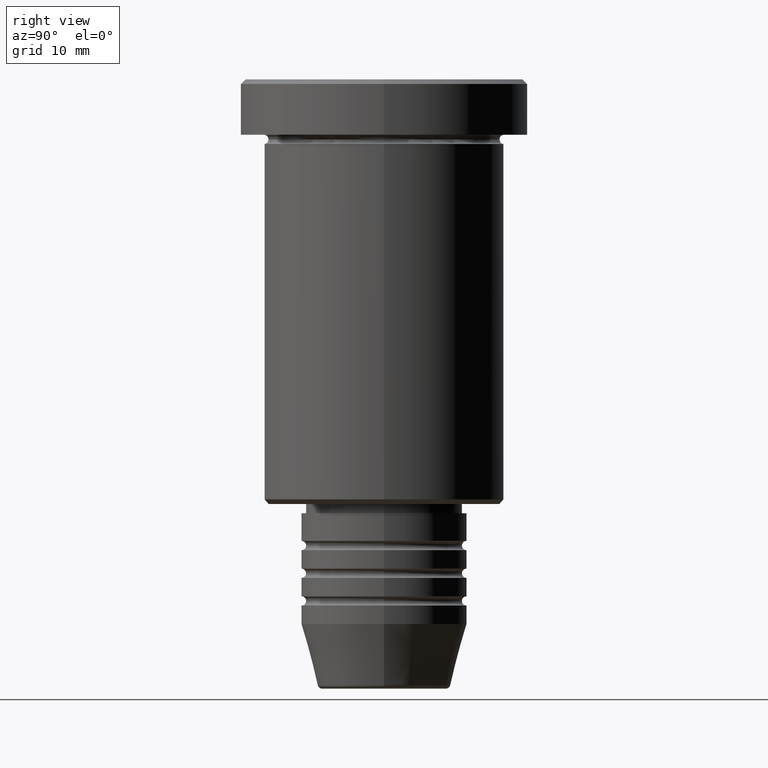
[diagram: clean part render]
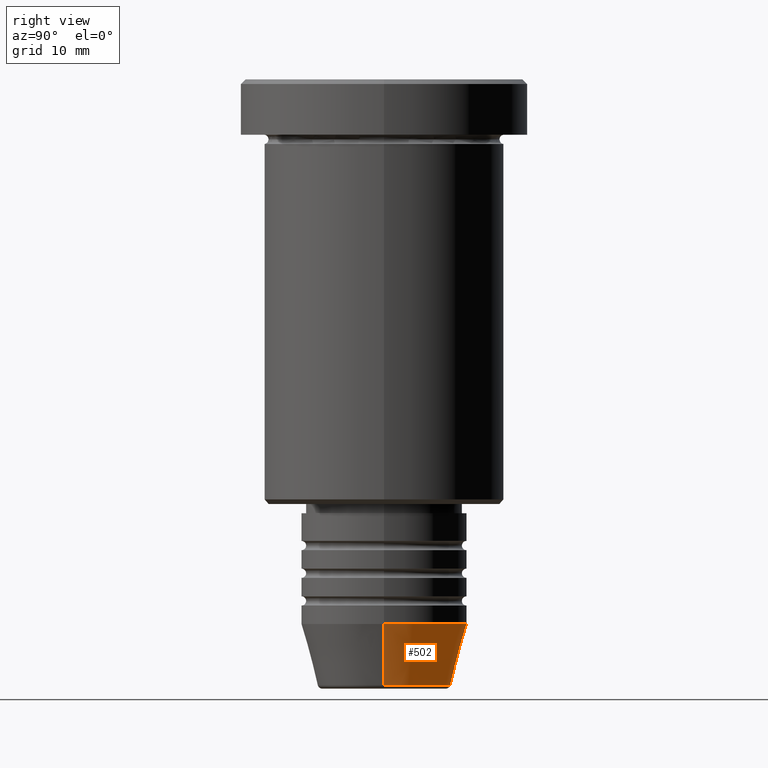
[diagram: same view with one face highlighted and labeled with its STEP entity id]
A machine part, right view. The second image highlights one B-rep face of the part: STEP entity #502.
In plain terms, the highlighted conical surface has half-angle 15 deg.
Its self-contained STEP definition (entity closure, byte-faithful):
#62 = VECTOR ( 'NONE', #191, 1000.000000000000000 ) ;
#91 = EDGE_CURVE ( 'NONE', #686, #211, #921, .T. ) ;
#132 = DIRECTION ( 'NONE',  ( 1.000000000000000000, 0.000000000000000000, 0.000000000000000000 ) ) ;
#137 = EDGE_CURVE ( 'NONE', #292, #669, #469, .T. ) ;
#161 = AXIS2_PLACEMENT_3D ( 'NONE', #1167, #606, #705 ) ;
#162 = DIRECTION ( 'NONE',  ( -0.2588190451025213501, 3.169619151431772337E-17, 0.9659258262890680902 ) ) ;
#191 = DIRECTION ( 'NONE',  ( 0.2588190451025213501, 0.000000000000000000, 0.9659258262890680902 ) ) ;
#204 = ORIENTED_EDGE ( 'NONE', *, *, #218, .F. ) ;
#211 = VERTEX_POINT ( 'NONE', #700 ) ;
#218 = EDGE_CURVE ( 'NONE', #686, #292, #1066, .T. ) ;
#219 = CARTESIAN_POINT ( 'NONE',  ( 0.000000000000000000, 0.000000000000000000, -59.00000000000000000 ) ) ;
#292 = VERTEX_POINT ( 'NONE', #736 ) ;
#327 = DIRECTION ( 'NONE',  ( -0.000000000000000000, -0.000000000000000000, 1.000000000000000000 ) ) ;
#363 = CARTESIAN_POINT ( 'NONE',  ( 7.223655072137188604, 0.000000000000000000, -65.62940952255127058 ) ) ;
#365 = ORIENTED_EDGE ( 'NONE', *, *, #614, .T. ) ;
#469 = CIRCLE ( 'NONE', #713, 9.000000000000000000 ) ;
#502 = ADVANCED_FACE ( 'NONE', ( #1129 ), #636, .T. ) ;
#512 = CARTESIAN_POINT ( 'NONE',  ( -9.000000000000000000, 1.102182119232617714E-15, -59.00000000000000000 ) ) ;
#606 = DIRECTION ( 'NONE',  ( -0.000000000000000000, -0.000000000000000000, 1.000000000000000000 ) ) ;
#614 = EDGE_CURVE ( 'NONE', #211, #669, #1057, .T. ) ;
#636 = CONICAL_SURFACE ( 'NONE', #1119, 9.000000000000000000, 0.2617993877991500740 ) ;
#646 = EDGE_LOOP ( 'NONE', ( #990, #365, #689, #204 ) ) ;
#669 = VERTEX_POINT ( 'NONE', #890 ) ;
#686 = VERTEX_POINT ( 'NONE', #363 ) ;
#689 = ORIENTED_EDGE ( 'NONE', *, *, #137, .F. ) ;
#700 = CARTESIAN_POINT ( 'NONE',  ( -7.223655072137189492, 9.934123627281765110E-16, -65.62940952255127058 ) ) ;
#705 = DIRECTION ( 'NONE',  ( 1.000000000000000000, 0.000000000000000000, 0.000000000000000000 ) ) ;
#713 = AXIS2_PLACEMENT_3D ( 'NONE', #797, #327, #956 ) ;
#736 = CARTESIAN_POINT ( 'NONE',  ( 9.000000000000000000, 0.000000000000000000, -59.00000000000000000 ) ) ;
#797 = CARTESIAN_POINT ( 'NONE',  ( 0.000000000000000000, 0.000000000000000000, -59.00000000000000000 ) ) ;
#882 = CARTESIAN_POINT ( 'NONE',  ( 9.000000000000000000, 0.000000000000000000, -59.00000000000000000 ) ) ;
#890 = CARTESIAN_POINT ( 'NONE',  ( -9.000000000000000000, 1.102182119232617714E-15, -59.00000000000000000 ) ) ;
#921 = CIRCLE ( 'NONE', #161, 7.223655072137188604 ) ;
#944 = DIRECTION ( 'NONE',  ( -0.000000000000000000, -0.000000000000000000, 1.000000000000000000 ) ) ;
#956 = DIRECTION ( 'NONE',  ( 1.000000000000000000, 0.000000000000000000, 0.000000000000000000 ) ) ;
#990 = ORIENTED_EDGE ( 'NONE', *, *, #91, .T. ) ;
#1057 = LINE ( 'NONE', #512, #1138 ) ;
#1066 = LINE ( 'NONE', #882, #62 ) ;
#1119 = AXIS2_PLACEMENT_3D ( 'NONE', #219, #944, #132 ) ;
#1129 = FACE_OUTER_BOUND ( 'NONE', #646, .T. ) ;
#1138 = VECTOR ( 'NONE', #162, 1000.000000000000000 ) ;
#1167 = CARTESIAN_POINT ( 'NONE',  ( 0.000000000000000000, 0.000000000000000000, -65.62940952255127058 ) ) ;